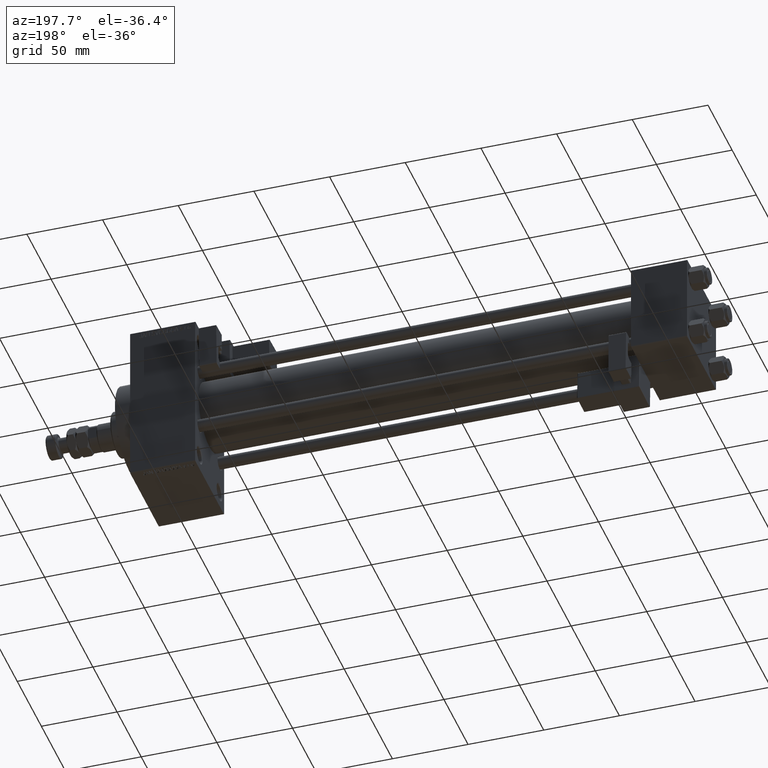
[diagram: clean part render]
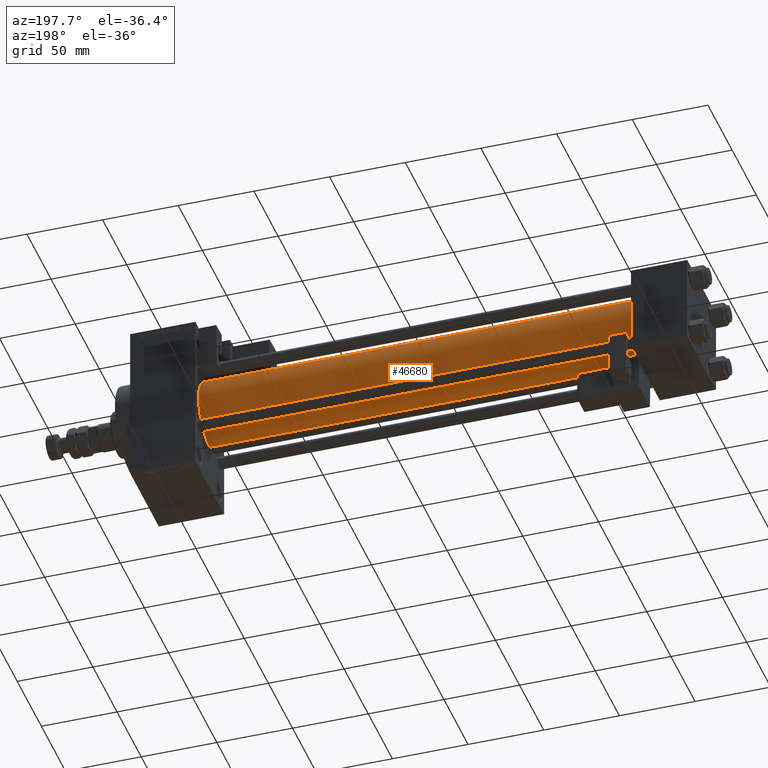
[diagram: same view with one face highlighted and labeled with its STEP entity id]
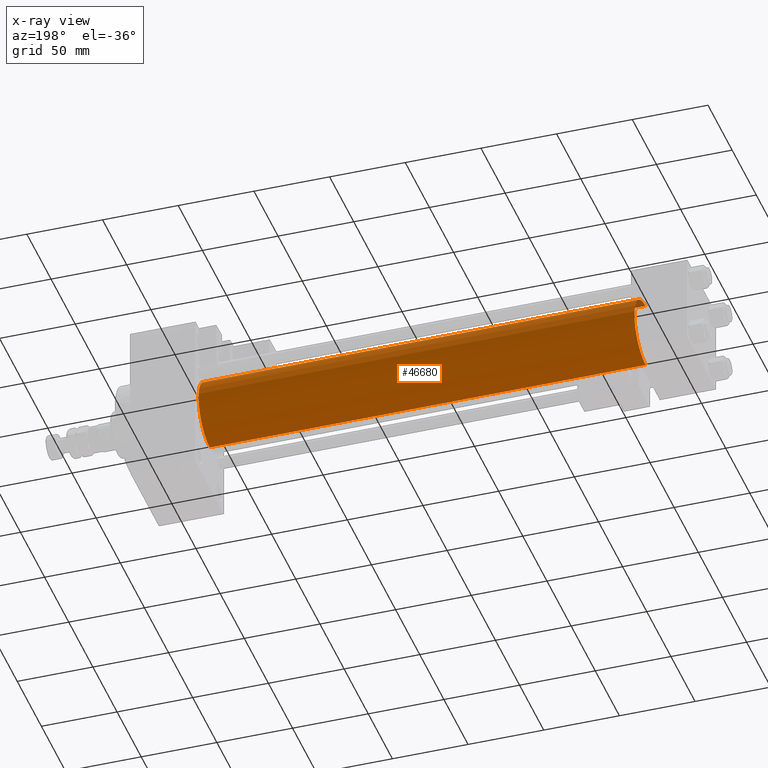
[diagram: x-ray of the same camera — body ghosted, the highlighted face saturated]
A machine part, auxiliary view. The second image highlights one B-rep face of the part: STEP entity #46680.
The next image is the same camera in x-ray: the body ghosted, the highlighted face saturated — about 0% of this face is hidden behind the body in this view.
In plain terms, the highlighted cylindrical surface (edge-blend (fillet) strip) has radius 23 mm, axis along (-1, -0, -0).
Its self-contained STEP definition (entity closure, byte-faithful):
#3203 = EDGE_LOOP ( 'NONE', ( #13310, #47688, #50754, #18457 ) ) ;
#5914 = CARTESIAN_POINT ( 'NONE',  ( 324.9999999999999432, -2.602085213965210642E-15, 23.00000000000000000 ) ) ;
#7429 = VECTOR ( 'NONE', #24561, 1000.000000000000000 ) ;
#7756 = CIRCLE ( 'NONE', #44214, 23.00000000000000000 ) ;
#8148 = EDGE_CURVE ( 'NONE', #49382, #14161, #17029, .T. ) ;
#8753 = CARTESIAN_POINT ( 'NONE',  ( 324.9999999999999432, -2.602085213965210642E-15, 23.00000000000000000 ) ) ;
#9594 = DIRECTION ( 'NONE',  ( 1.000000000000000000, -0.000000000000000000, 0.000000000000000000 ) ) ;
#10740 = DIRECTION ( 'NONE',  ( 0.000000000000000000, 0.000000000000000000, 1.000000000000000000 ) ) ;
#13189 = VERTEX_POINT ( 'NONE', #15887 ) ;
#13310 = ORIENTED_EDGE ( 'NONE', *, *, #19428, .F. ) ;
#13739 = CARTESIAN_POINT ( 'NONE',  ( 36.99999999999997868, -2.602085213965210642E-15, 0.000000000000000000 ) ) ;
#14161 = VERTEX_POINT ( 'NONE', #45354 ) ;
#14321 = EDGE_CURVE ( 'NONE', #13189, #41473, #42773, .T. ) ;
#14627 = CYLINDRICAL_SURFACE ( 'NONE', #23758, 23.00000000000000000 ) ;
#15887 = CARTESIAN_POINT ( 'NONE',  ( 324.9999999999999432, 2.146024240737016609E-16, -23.00000000000000000 ) ) ;
#16494 = DIRECTION ( 'NONE',  ( 1.000000000000000000, 0.000000000000000000, 0.000000000000000000 ) ) ;
#17029 = LINE ( 'NONE', #8753, #7429 ) ;
#18457 = ORIENTED_EDGE ( 'NONE', *, *, #8148, .F. ) ;
#19428 = EDGE_CURVE ( 'NONE', #13189, #49382, #37686, .T. ) ;
#20875 = CARTESIAN_POINT ( 'NONE',  ( 324.9999999999999432, -2.602085213965210642E-15, 0.000000000000000000 ) ) ;
#23758 = AXIS2_PLACEMENT_3D ( 'NONE', #30452, #46292, #10740 ) ;
#24561 = DIRECTION ( 'NONE',  ( -1.000000000000000000, -0.000000000000000000, -0.000000000000000000 ) ) ;
#25992 = CARTESIAN_POINT ( 'NONE',  ( 36.99999999999997868, 2.146024240737016609E-16, -23.00000000000000000 ) ) ;
#27171 = CARTESIAN_POINT ( 'NONE',  ( 324.9999999999999432, 2.146024240737016609E-16, -23.00000000000000000 ) ) ;
#29405 = AXIS2_PLACEMENT_3D ( 'NONE', #20875, #16494, #32337 ) ;
#30452 = CARTESIAN_POINT ( 'NONE',  ( 324.9999999999999432, -2.602085213965210642E-15, 0.000000000000000000 ) ) ;
#32337 = DIRECTION ( 'NONE',  ( 0.000000000000000000, 0.000000000000000000, -1.000000000000000000 ) ) ;
#34353 = FACE_OUTER_BOUND ( 'NONE', #3203, .T. ) ;
#37065 = EDGE_CURVE ( 'NONE', #41473, #14161, #7756, .T. ) ;
#37686 = CIRCLE ( 'NONE', #29405, 23.00000000000000000 ) ;
#41473 = VERTEX_POINT ( 'NONE', #25992 ) ;
#42773 = LINE ( 'NONE', #27171, #44155 ) ;
#43025 = DIRECTION ( 'NONE',  ( -1.000000000000000000, -0.000000000000000000, -0.000000000000000000 ) ) ;
#44155 = VECTOR ( 'NONE', #43025, 1000.000000000000000 ) ;
#44214 = AXIS2_PLACEMENT_3D ( 'NONE', #13739, #9594, #45667 ) ;
#45354 = CARTESIAN_POINT ( 'NONE',  ( 36.99999999999997868, -2.602085213965210642E-15, 23.00000000000000000 ) ) ;
#45667 = DIRECTION ( 'NONE',  ( 0.000000000000000000, 0.000000000000000000, 1.000000000000000000 ) ) ;
#46292 = DIRECTION ( 'NONE',  ( -1.000000000000000000, -0.000000000000000000, -0.000000000000000000 ) ) ;
#46680 = ADVANCED_FACE ( 'NONE', ( #34353 ), #14627, .T. ) ;
#47688 = ORIENTED_EDGE ( 'NONE', *, *, #14321, .T. ) ;
#49382 = VERTEX_POINT ( 'NONE', #5914 ) ;
#50754 = ORIENTED_EDGE ( 'NONE', *, *, #37065, .T. ) ;